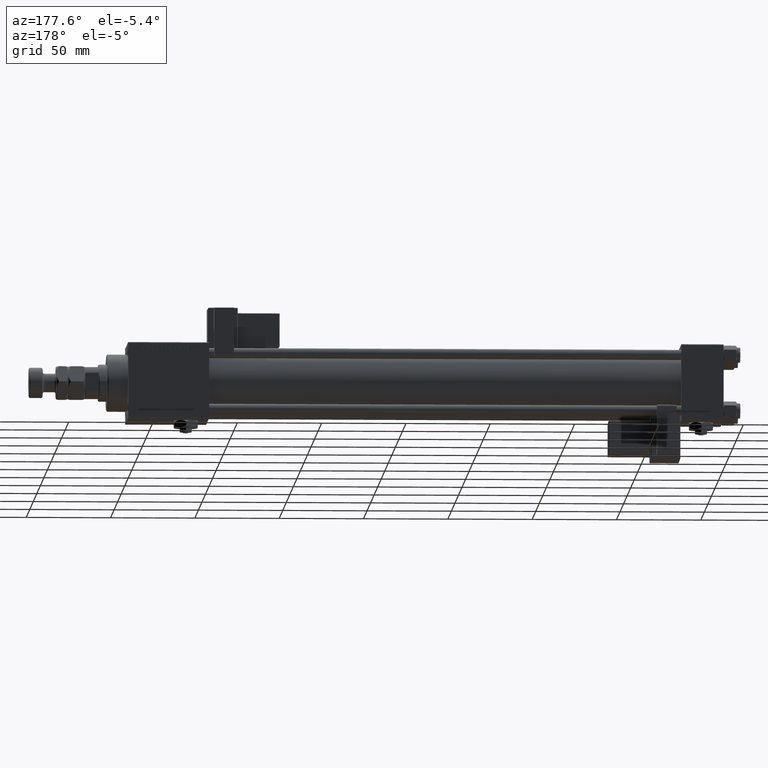
[diagram: clean part render]
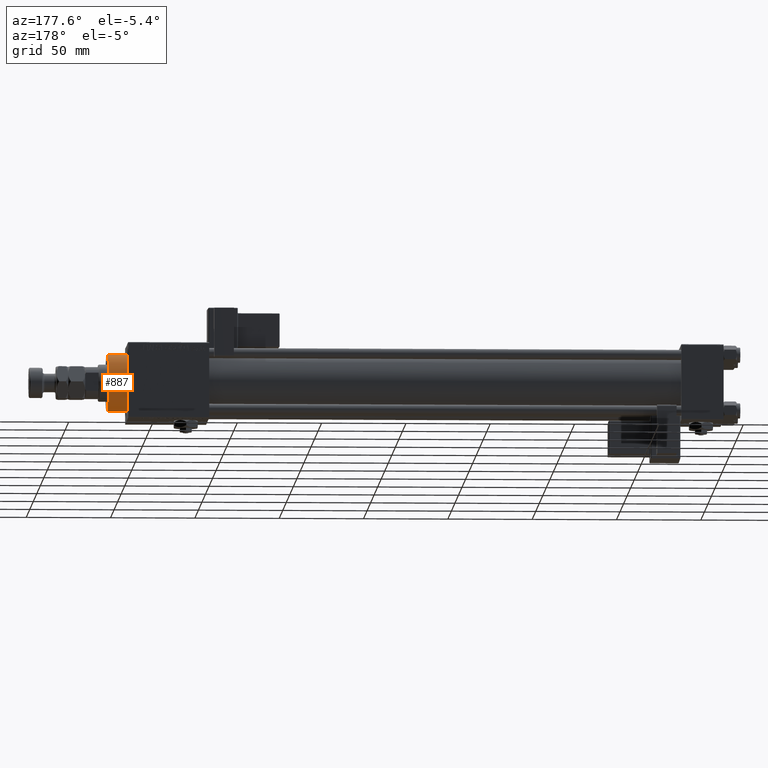
[diagram: same view with one face highlighted and labeled with its STEP entity id]
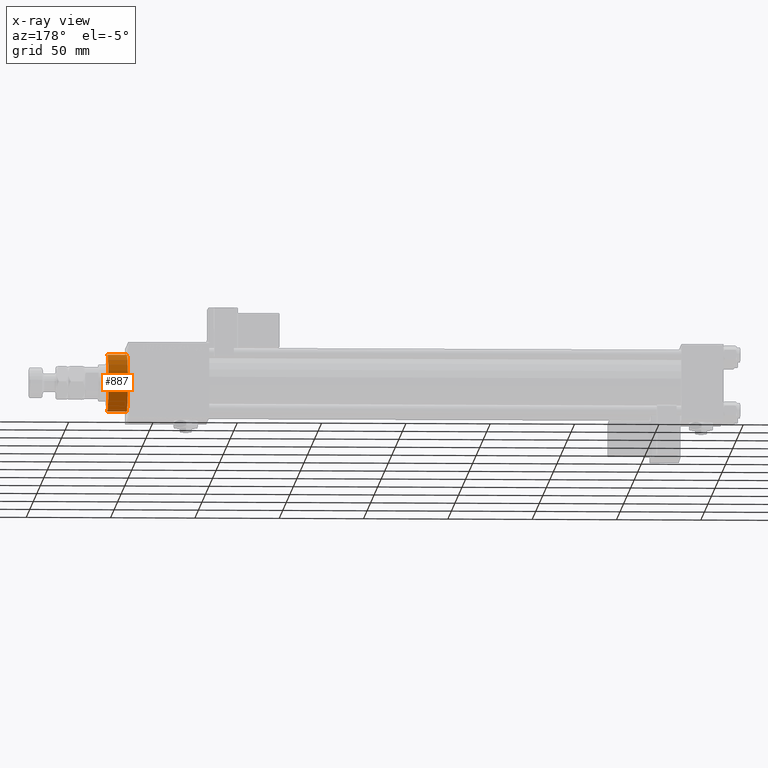
[diagram: x-ray of the same camera — body ghosted, the highlighted face saturated]
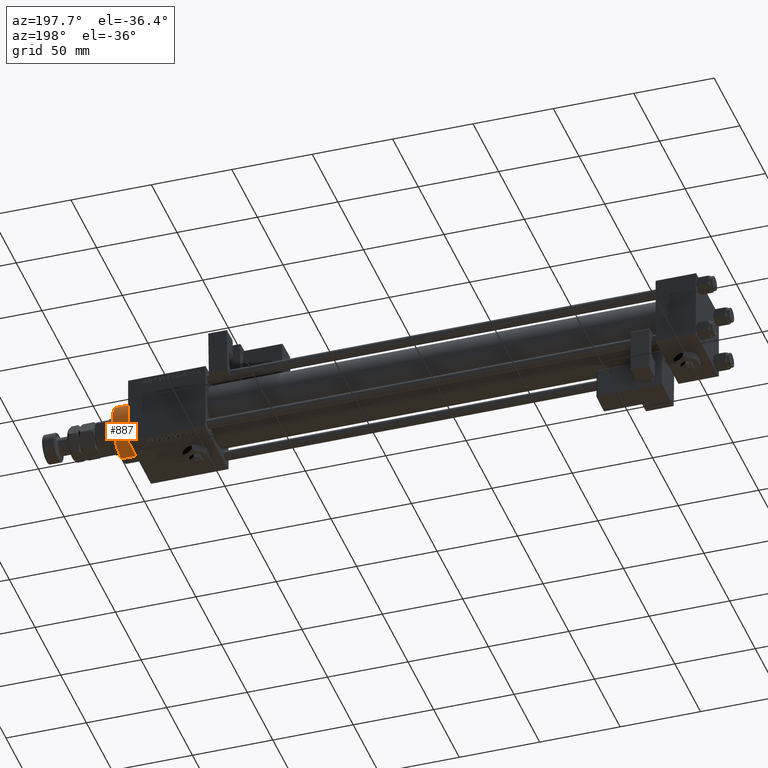
[diagram: same view with one face highlighted and labeled with its STEP entity id]
A machine part, auxiliary view. The second image highlights one B-rep face of the part: STEP entity #887.
The next image is the same camera in x-ray: the body ghosted, the highlighted face saturated — about 0% of this face is hidden behind the body in this view.
A second angle (auxiliary view) of the same face is appended — the face is thin or edge-on in the first view.
In plain terms, the highlighted cylindrical surface (edge-blend (fillet) strip) has radius 17 mm, axis along (-1, -0, -0).
Its self-contained STEP definition (entity closure, byte-faithful):
#887 = ADVANCED_FACE ( 'NONE', ( #34405 ), #12800, .T. ) ;
#1796 = DIRECTION ( 'NONE',  ( 1.000000000000000000, 0.000000000000000000, 0.000000000000000000 ) ) ;
#2646 = CARTESIAN_POINT ( 'NONE',  ( 0.000000000000000000, 0.000000000000000000, 40.19999999999999574 ) ) ;
#8256 = DIRECTION ( 'NONE',  ( -0.000000000000000000, -0.000000000000000000, -1.000000000000000000 ) ) ;
#8462 = CARTESIAN_POINT ( 'NONE',  ( 17.00000000000000000, 2.081899558550500280E-15, 40.19999999999999574 ) ) ;
#8648 = ORIENTED_EDGE ( 'NONE', *, *, #53235, .T. ) ;
#9303 = CARTESIAN_POINT ( 'NONE',  ( 17.00000000000000000, 2.081899558550500280E-15, 28.69999999999999929 ) ) ;
#10400 = AXIS2_PLACEMENT_3D ( 'NONE', #2646, #40747, #1796 ) ;
#10907 = AXIS2_PLACEMENT_3D ( 'NONE', #15954, #20504, #33290 ) ;
#11050 = DIRECTION ( 'NONE',  ( 1.000000000000000000, 0.000000000000000000, 0.000000000000000000 ) ) ;
#12450 = CARTESIAN_POINT ( 'NONE',  ( -17.00000000000000000, 0.000000000000000000, 40.19999999999999574 ) ) ;
#12800 = CYLINDRICAL_SURFACE ( 'NONE', #10907, 17.00000000000000000 ) ;
#14350 = VERTEX_POINT ( 'NONE', #9303 ) ;
#15954 = CARTESIAN_POINT ( 'NONE',  ( 0.000000000000000000, 0.000000000000000000, 40.70000000000000284 ) ) ;
#19591 = CARTESIAN_POINT ( 'NONE',  ( 0.000000000000000000, 0.000000000000000000, 28.69999999999999929 ) ) ;
#19786 = ORIENTED_EDGE ( 'NONE', *, *, #42476, .T. ) ;
#20504 = DIRECTION ( 'NONE',  ( -0.000000000000000000, -0.000000000000000000, -1.000000000000000000 ) ) ;
#20700 = DIRECTION ( 'NONE',  ( -0.000000000000000000, -0.000000000000000000, -1.000000000000000000 ) ) ;
#20855 = ORIENTED_EDGE ( 'NONE', *, *, #28432, .T. ) ;
#21390 = CARTESIAN_POINT ( 'NONE',  ( -17.00000000000000000, 0.000000000000000000, 28.69999999999999929 ) ) ;
#23421 = CIRCLE ( 'NONE', #51566, 17.00000000000000000 ) ;
#24142 = DIRECTION ( 'NONE',  ( 0.000000000000000000, 0.000000000000000000, 1.000000000000000000 ) ) ;
#25858 = VECTOR ( 'NONE', #20700, 1000.000000000000000 ) ;
#28432 = EDGE_CURVE ( 'NONE', #34866, #14350, #42306, .T. ) ;
#32928 = CARTESIAN_POINT ( 'NONE',  ( 17.00000000000000000, 2.081899558550500280E-15, 40.70000000000000284 ) ) ;
#33290 = DIRECTION ( 'NONE',  ( -1.000000000000000000, 0.000000000000000000, 0.000000000000000000 ) ) ;
#34405 = FACE_OUTER_BOUND ( 'NONE', #37801, .T. ) ;
#34866 = VERTEX_POINT ( 'NONE', #8462 ) ;
#34972 = LINE ( 'NONE', #56050, #44339 ) ;
#37122 = VERTEX_POINT ( 'NONE', #12450 ) ;
#37801 = EDGE_LOOP ( 'NONE', ( #19786, #20855, #8648, #44540 ) ) ;
#40347 = CIRCLE ( 'NONE', #10400, 17.00000000000000000 ) ;
#40747 = DIRECTION ( 'NONE',  ( 0.000000000000000000, 0.000000000000000000, -1.000000000000000000 ) ) ;
#42306 = LINE ( 'NONE', #32928, #25858 ) ;
#42476 = EDGE_CURVE ( 'NONE', #37122, #34866, #40347, .T. ) ;
#44339 = VECTOR ( 'NONE', #8256, 1000.000000000000000 ) ;
#44540 = ORIENTED_EDGE ( 'NONE', *, *, #54712, .F. ) ;
#51084 = VERTEX_POINT ( 'NONE', #21390 ) ;
#51566 = AXIS2_PLACEMENT_3D ( 'NONE', #19591, #24142, #11050 ) ;
#53235 = EDGE_CURVE ( 'NONE', #14350, #51084, #23421, .T. ) ;
#54712 = EDGE_CURVE ( 'NONE', #37122, #51084, #34972, .T. ) ;
#56050 = CARTESIAN_POINT ( 'NONE',  ( -17.00000000000000000, 0.000000000000000000, 40.70000000000000284 ) ) ;